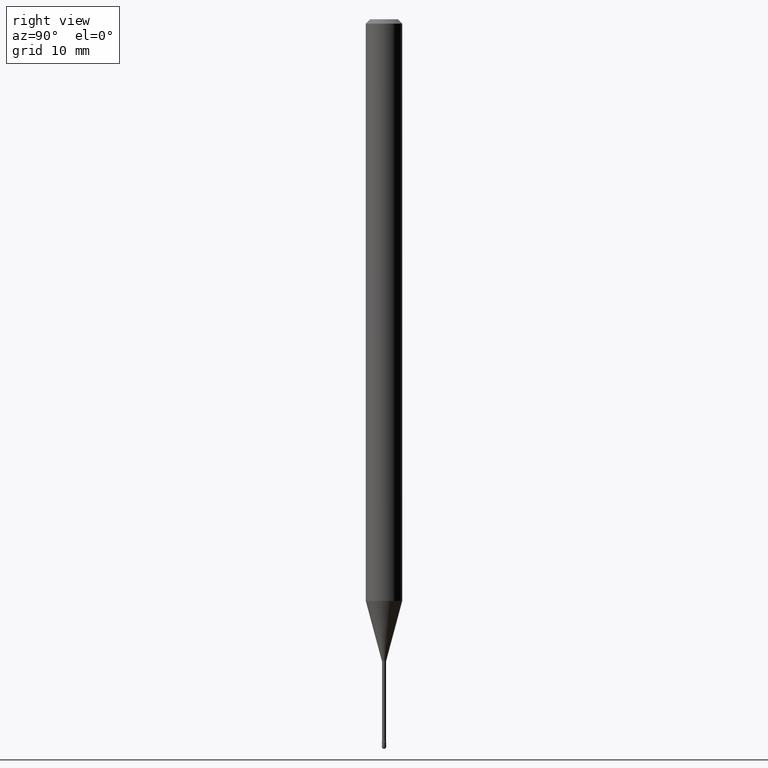
[diagram: clean part render]
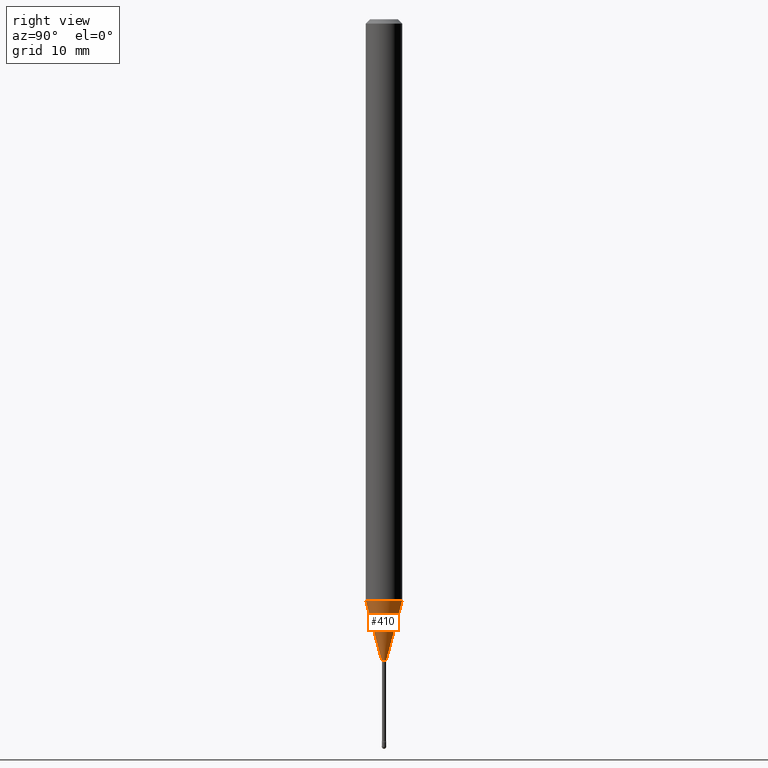
[diagram: same view with one face highlighted and labeled with its STEP entity id]
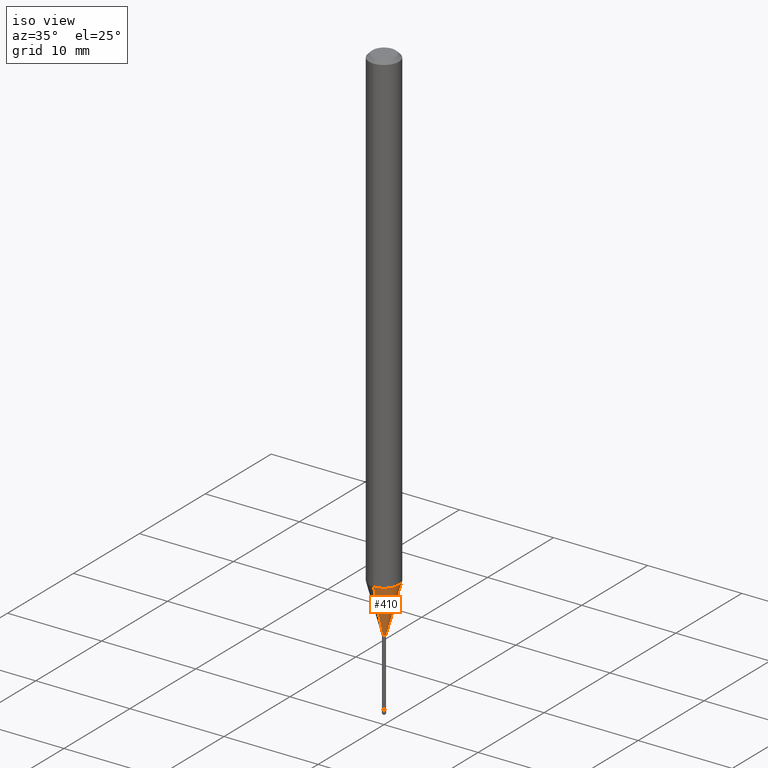
[diagram: same view with one face highlighted and labeled with its STEP entity id]
A machine part, right view. The second image highlights one B-rep face of the part: STEP entity #410.
A second angle (iso view) of the same face is appended — the face is thin or edge-on in the first view.
In plain terms, the highlighted conical surface has half-angle 15 deg.
Its self-contained STEP definition (entity closure, byte-faithful):
#7 = ORIENTED_EDGE ( 'NONE', *, *, #260, .T. ) ;
#13 = ORIENTED_EDGE ( 'NONE', *, *, #310, .T. ) ;
#35 = VERTEX_POINT ( 'NONE', #419 ) ;
#37 = VERTEX_POINT ( 'NONE', #198 ) ;
#45 = CIRCLE ( 'NONE', #501, 0.007561112605663979948 ) ;
#55 = DIRECTION ( 'NONE',  ( 1.839019923739597160E-15, 0.2588190451025245142, 0.9659258262890670910 ) ) ;
#86 = CARTESIAN_POINT ( 'NONE',  ( -4.364351673553429572E-16, -0.06250000000000695277, -1.993057782720305759 ) ) ;
#91 = CARTESIAN_POINT ( 'NONE',  ( -5.279896712708096815E-17, -0.007561112605671654364, -2.198092501787273001 ) ) ;
#118 = EDGE_CURVE ( 'NONE', #328, #37, #462, .T. ) ;
#139 = CARTESIAN_POINT ( 'NONE',  ( 5.372493636224038015E-17, 0.007561112605656304664, -2.198092501787273001 ) ) ;
#168 = AXIS2_PLACEMENT_3D ( 'NONE', #204, #326, #466 ) ;
#175 = EDGE_LOOP ( 'NONE', ( #7, #13, #478, #306 ) ) ;
#178 = FACE_OUTER_BOUND ( 'NONE', #175, .T. ) ;
#198 = CARTESIAN_POINT ( 'NONE',  ( 4.440892098501111311E-16, 0.06249999999999304029, -1.993057782720306426 ) ) ;
#204 = CARTESIAN_POINT ( 'NONE',  ( 4.873942679318546206E-29, -6.958749771405926605E-15, -1.993057782720306204 ) ) ;
#214 = CARTESIAN_POINT ( 'NONE',  ( 5.375346841639724006E-29, -7.674627312342109412E-15, -2.198092501787273001 ) ) ;
#215 = VECTOR ( 'NONE', #55, 39.37007874015748854 ) ;
#226 = DIRECTION ( 'NONE',  ( -6.982962677686265133E-15, -1.000000000000000000, 0.000000000000000000 ) ) ;
#227 = CONICAL_SURFACE ( 'NONE', #241, 0.007561112605663979948, 0.2617993877991498519 ) ;
#241 = AXIS2_PLACEMENT_3D ( 'NONE', #533, #438, #226 ) ;
#260 = EDGE_CURVE ( 'NONE', #441, #35, #45, .T. ) ;
#302 = EDGE_CURVE ( 'NONE', #441, #328, #315, .T. ) ;
#306 = ORIENTED_EDGE ( 'NONE', *, *, #302, .F. ) ;
#310 = EDGE_CURVE ( 'NONE', #35, #37, #531, .T. ) ;
#315 = LINE ( 'NONE', #527, #510 ) ;
#326 = DIRECTION ( 'NONE',  ( -2.445459796286561795E-29, 3.491494241530716239E-15, 1.000000000000000000 ) ) ;
#328 = VERTEX_POINT ( 'NONE', #86 ) ;
#384 = DIRECTION ( 'NONE',  ( -2.445459796286561795E-29, 3.491494241530716239E-15, 1.000000000000000000 ) ) ;
#391 = DIRECTION ( 'NONE',  ( -1.807323732225327378E-15, -0.2588190451025177974, 0.9659258262890690894 ) ) ;
#410 = ADVANCED_FACE ( 'NONE', ( #178 ), #227, .T. ) ;
#419 = CARTESIAN_POINT ( 'NONE',  ( 2.489070731061760237E-16, 0.007561112605656305531, -2.198092501787273001 ) ) ;
#438 = DIRECTION ( 'NONE',  ( -2.445459796286561795E-29, 3.491494241530716239E-15, 1.000000000000000000 ) ) ;
#441 = VERTEX_POINT ( 'NONE', #91 ) ;
#462 = CIRCLE ( 'NONE', #168, 0.06250000000000000000 ) ;
#466 = DIRECTION ( 'NONE',  ( -6.982962677686265922E-15, -1.000000000000000000, 4.370956789862821150E-15 ) ) ;
#478 = ORIENTED_EDGE ( 'NONE', *, *, #118, .F. ) ;
#501 = AXIS2_PLACEMENT_3D ( 'NONE', #214, #384, #516 ) ;
#510 = VECTOR ( 'NONE', #391, 39.37007874015748143 ) ;
#516 = DIRECTION ( 'NONE',  ( -6.982962677686265133E-15, -1.000000000000000000, 0.000000000000000000 ) ) ;
#527 = CARTESIAN_POINT ( 'NONE',  ( -5.279896712708096815E-17, -0.007561112605671654364, -2.198092501787273001 ) ) ;
#531 = LINE ( 'NONE', #139, #215 ) ;
#533 = CARTESIAN_POINT ( 'NONE',  ( 5.375346841639724006E-29, -7.674627312342109412E-15, -2.198092501787273001 ) ) ;